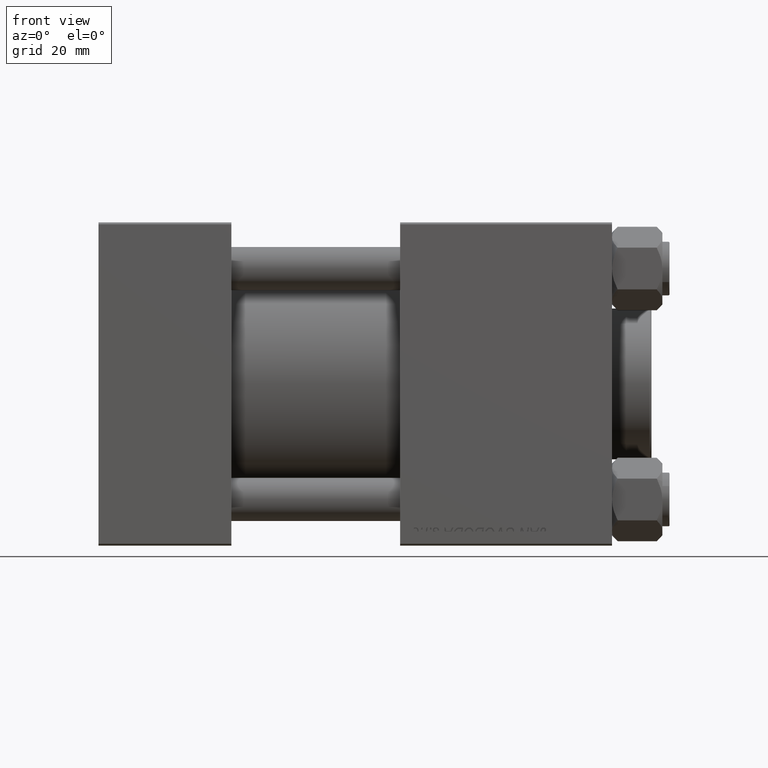
[diagram: clean part render]
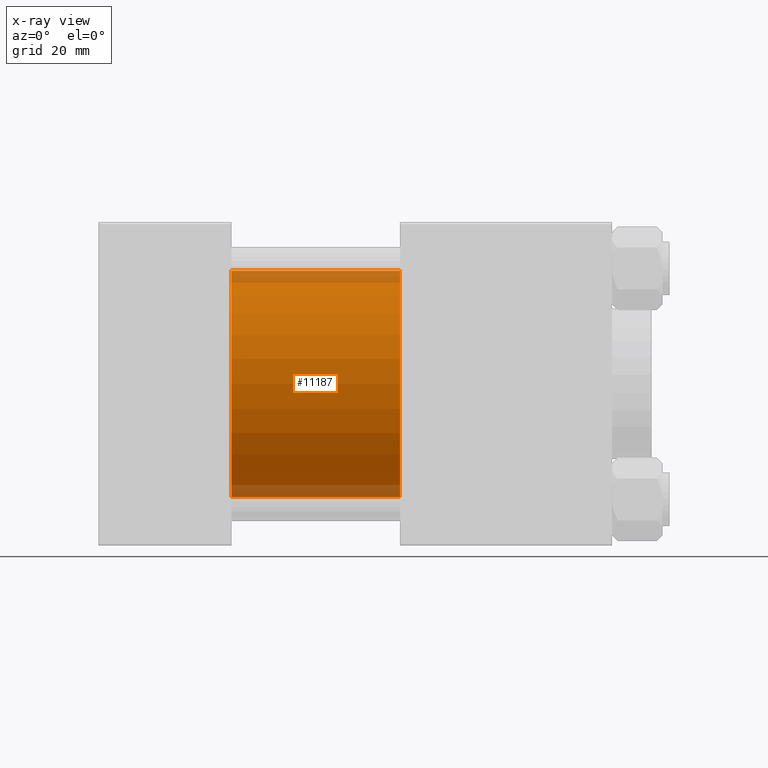
[diagram: x-ray — body ghosted, one internal face saturated and labeled with its STEP entity id]
A machine part, front view, then the same camera in x-ray: the body is ghosted and one INTERNAL B-rep face — a face not visible from any outside direction — is saturated and labeled: STEP entity #11187.
In plain terms, the highlighted cylindrical surface (partial cylindrical patch) has radius 31.5 mm, axis along (-1, -0, -0).
Its self-contained STEP definition (entity closure, byte-faithful):
#461 = CARTESIAN_POINT ( 'NONE',  ( 83.99999999999998579, 3.857637417314162689E-15, -31.50000000000000000 ) ) ;
#4132 = DIRECTION ( 'NONE',  ( -1.000000000000000000, -0.000000000000000000, -0.000000000000000000 ) ) ;
#5811 = EDGE_CURVE ( 'NONE', #36927, #7270, #11914, .T. ) ;
#7154 = CARTESIAN_POINT ( 'NONE',  ( 37.00000000000000000, 0.000000000000000000, 0.000000000000000000 ) ) ;
#7270 = VERTEX_POINT ( 'NONE', #22412 ) ;
#7519 = FACE_OUTER_BOUND ( 'NONE', #24121, .T. ) ;
#11005 = VECTOR ( 'NONE', #4132, 1000.000000000000000 ) ;
#11187 = ADVANCED_FACE ( 'NONE', ( #7519 ), #26922, .F. ) ;
#11914 = LINE ( 'NONE', #24271, #11005 ) ;
#16015 = EDGE_CURVE ( 'NONE', #36927, #30275, #28259, .T. ) ;
#16112 = CARTESIAN_POINT ( 'NONE',  ( 83.99999999999998579, 3.857637417314162689E-15, -31.50000000000000000 ) ) ;
#17506 = CIRCLE ( 'NONE', #39194, 31.50000000000000000 ) ;
#19233 = CARTESIAN_POINT ( 'NONE',  ( 83.99999999999998579, 0.000000000000000000, 31.50000000000000000 ) ) ;
#22412 = CARTESIAN_POINT ( 'NONE',  ( 37.00000000000000000, 0.000000000000000000, 31.50000000000000000 ) ) ;
#22962 = EDGE_CURVE ( 'NONE', #7270, #41880, #17506, .T. ) ;
#23436 = ORIENTED_EDGE ( 'NONE', *, *, #22962, .F. ) ;
#23450 = ORIENTED_EDGE ( 'NONE', *, *, #5811, .F. ) ;
#24121 = EDGE_LOOP ( 'NONE', ( #39464, #48009, #23436, #23450 ) ) ;
#24271 = CARTESIAN_POINT ( 'NONE',  ( 83.99999999999998579, 0.000000000000000000, 31.50000000000000000 ) ) ;
#26115 = EDGE_CURVE ( 'NONE', #30275, #41880, #43495, .T. ) ;
#26627 = AXIS2_PLACEMENT_3D ( 'NONE', #37193, #37429, #34161 ) ;
#26922 = CYLINDRICAL_SURFACE ( 'NONE', #34525, 31.50000000000000000 ) ;
#28259 = CIRCLE ( 'NONE', #26627, 31.50000000000000000 ) ;
#30275 = VERTEX_POINT ( 'NONE', #16112 ) ;
#31445 = DIRECTION ( 'NONE',  ( -1.000000000000000000, -0.000000000000000000, -0.000000000000000000 ) ) ;
#34161 = DIRECTION ( 'NONE',  ( 0.000000000000000000, 0.000000000000000000, -1.000000000000000000 ) ) ;
#34525 = AXIS2_PLACEMENT_3D ( 'NONE', #42768, #37987, #38483 ) ;
#36927 = VERTEX_POINT ( 'NONE', #19233 ) ;
#37193 = CARTESIAN_POINT ( 'NONE',  ( 83.99999999999998579, 0.000000000000000000, 0.000000000000000000 ) ) ;
#37429 = DIRECTION ( 'NONE',  ( 1.000000000000000000, 0.000000000000000000, 0.000000000000000000 ) ) ;
#37987 = DIRECTION ( 'NONE',  ( -1.000000000000000000, -0.000000000000000000, -0.000000000000000000 ) ) ;
#38110 = DIRECTION ( 'NONE',  ( 0.000000000000000000, 0.000000000000000000, -1.000000000000000000 ) ) ;
#38483 = DIRECTION ( 'NONE',  ( 0.000000000000000000, 0.000000000000000000, 1.000000000000000000 ) ) ;
#39194 = AXIS2_PLACEMENT_3D ( 'NONE', #7154, #45666, #38110 ) ;
#39464 = ORIENTED_EDGE ( 'NONE', *, *, #16015, .T. ) ;
#41880 = VERTEX_POINT ( 'NONE', #49150 ) ;
#42768 = CARTESIAN_POINT ( 'NONE',  ( 83.99999999999998579, 0.000000000000000000, 0.000000000000000000 ) ) ;
#43495 = LINE ( 'NONE', #461, #49736 ) ;
#45666 = DIRECTION ( 'NONE',  ( 1.000000000000000000, 0.000000000000000000, 0.000000000000000000 ) ) ;
#48009 = ORIENTED_EDGE ( 'NONE', *, *, #26115, .T. ) ;
#49150 = CARTESIAN_POINT ( 'NONE',  ( 37.00000000000000000, 3.857637417314162689E-15, -31.50000000000000000 ) ) ;
#49736 = VECTOR ( 'NONE', #31445, 1000.000000000000000 ) ;